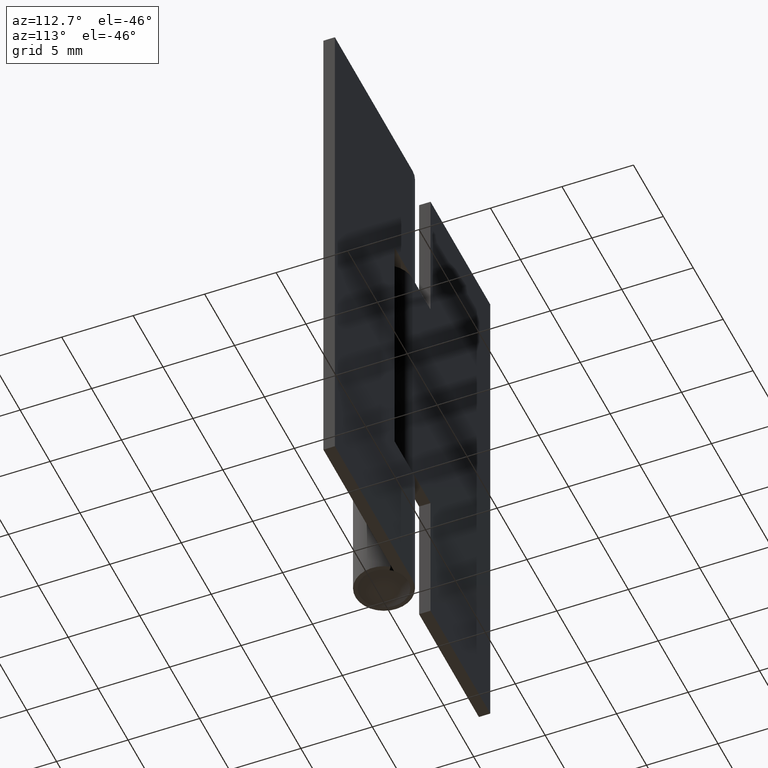
[diagram: clean part render]
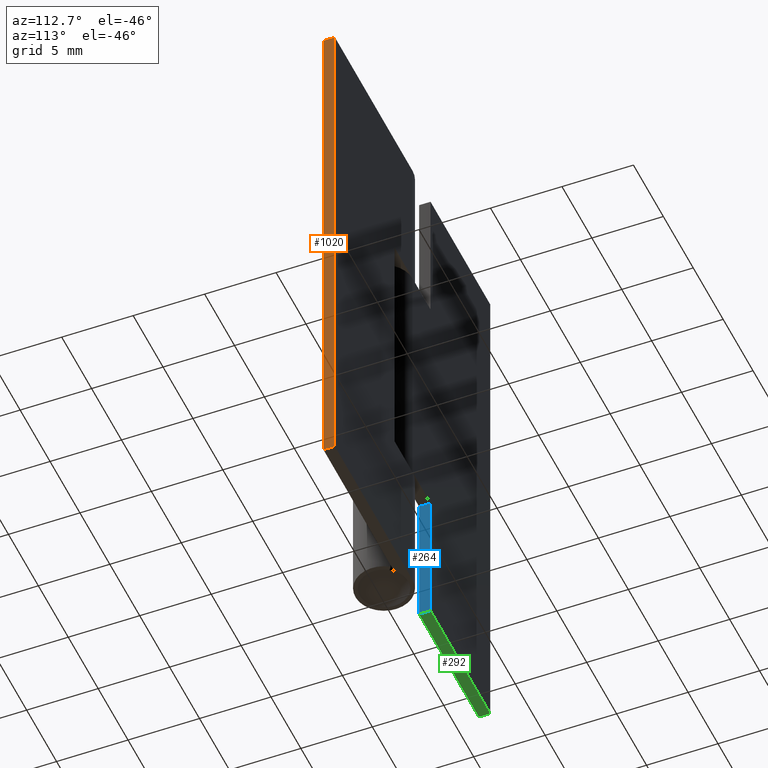
[diagram: same view with three faces highlighted in distinct colors, each labeled with its STEP entity id]
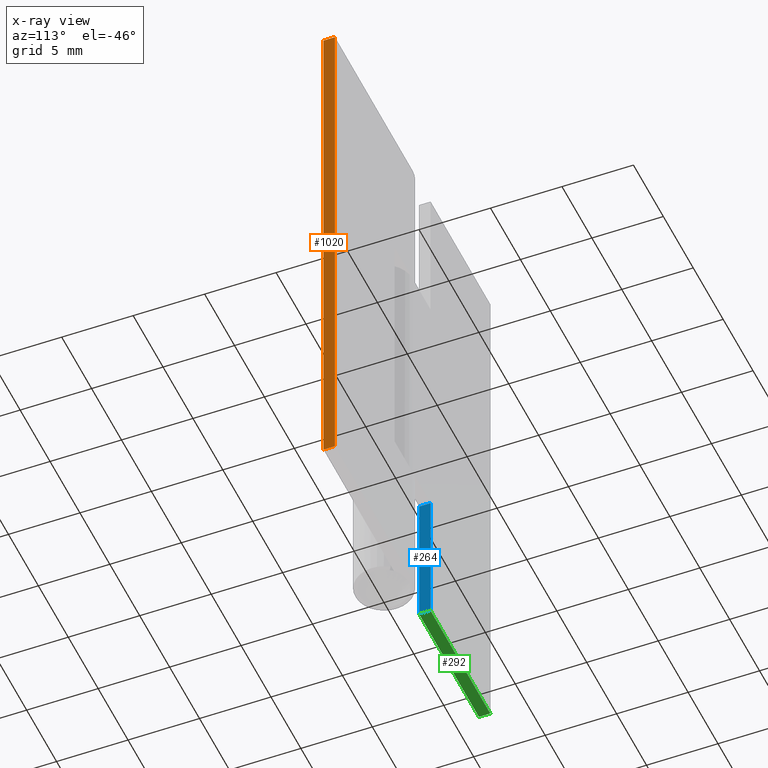
[diagram: x-ray of the same camera — body ghosted, the three highlighted faces saturated]
A machine part, auxiliary view with three faces highlighted in distinct colors.
The next image is the same camera in x-ray (body ghosted, the three faces saturated) — at least one of them is partly hidden behind the body in this view.
Their STEP definitions:

[orange] entity #1020 — the highlighted face is a freeform B-spline surface patch.
#697=CARTESIAN_POINT('',(13.0,1.999999000000000,0.0));
#698=VERTEX_POINT('',#697);
#704=CARTESIAN_POINT('',(13.0,1.200000000000000,0.0));
#705=VERTEX_POINT('',#704);
#706=CARTESIAN_POINT('',(13.0,1.999999000000000,0.0));
#707=CARTESIAN_POINT('',(13.0,1.200000000000000,0.0));
#708=QUASI_UNIFORM_CURVE('',1,(#706,#707),.UNSPECIFIED.,.F.,.U.);
#709=EDGE_CURVE('',#698,#705,#708,.T.);
#798=CARTESIAN_POINT('',(13.0,1.999999000000000,38.0));
#799=VERTEX_POINT('',#798);
#880=CARTESIAN_POINT('',(13.0,1.200000000000000,38.0));
#881=VERTEX_POINT('',#880);
#887=CARTESIAN_POINT('',(13.0,1.999999000000000,38.0));
#888=CARTESIAN_POINT('',(13.0,1.200000000000000,38.0));
#889=QUASI_UNIFORM_CURVE('',1,(#887,#888),.UNSPECIFIED.,.F.,.U.);
#890=EDGE_CURVE('',#799,#881,#889,.T.);
#991=CARTESIAN_POINT('',(13.0,1.200000000000000,38.0));
#992=CARTESIAN_POINT('',(13.0,1.200000000000000,0.0));
#993=QUASI_UNIFORM_CURVE('',1,(#991,#992),.UNSPECIFIED.,.F.,.U.);
#994=EDGE_CURVE('',#881,#705,#993,.T.);
#1005=CARTESIAN_POINT('',(13.0,1.160040051500553,39.898099926348621));
#1006=CARTESIAN_POINT('',(13.0,1.160040051500553,-1.898100945588053));
#1007=CARTESIAN_POINT('',(13.0,2.039958969957092,39.898099926348621));
#1008=CARTESIAN_POINT('',(13.0,2.039958969957092,-1.898100945588053));
#1009=B_SPLINE_SURFACE_WITH_KNOTS('',1,1,((#1005,#1007),(#1006,#1008)),.UNSPECIFIED.,.F.,.F.,.U.,(2,2),(2,2),(0.0,41.796200871936684),(0.041708334948495,0.958291687403247),.UNSPECIFIED.);
#1010=ORIENTED_EDGE('',*,*,#709,.F.);
#1011=CARTESIAN_POINT('',(13.0,1.999999000000000,38.0));
#1012=CARTESIAN_POINT('',(13.0,1.999999000000000,0.0));
#1013=QUASI_UNIFORM_CURVE('',1,(#1011,#1012),.UNSPECIFIED.,.F.,.U.);
#1014=EDGE_CURVE('',#799,#698,#1013,.T.);
#1015=ORIENTED_EDGE('',*,*,#1014,.F.);
#1016=ORIENTED_EDGE('',*,*,#890,.T.);
#1017=ORIENTED_EDGE('',*,*,#994,.T.);
#1018=EDGE_LOOP('',(#1010,#1015,#1016,#1017));
#1019=FACE_OUTER_BOUND('',#1018,.T.);
#1020=ADVANCED_FACE('',(#1019),#1009,.T.);

[blue] entity #264 — the highlighted face is a freeform B-spline surface patch.
#215=CARTESIAN_POINT('',(-3.0,1.199999999999980,9.999999999999890));
#216=VERTEX_POINT('',#215);
#222=CARTESIAN_POINT('',(-3.0,1.999999000000030,9.999999999999890));
#223=VERTEX_POINT('',#222);
#224=CARTESIAN_POINT('',(-3.0,1.199999999999980,9.999999999999890));
#225=CARTESIAN_POINT('',(-3.0,1.999999000000030,9.999999999999890));
#226=QUASI_UNIFORM_CURVE('',1,(#224,#225),.UNSPECIFIED.,.F.,.U.);
#227=EDGE_CURVE('',#216,#223,#226,.T.);
#237=CARTESIAN_POINT('',(-3.0,1.160040051500531,-0.499499980618069));
#238=CARTESIAN_POINT('',(-3.0,1.160040051500531,10.499500248838840));
#239=CARTESIAN_POINT('',(-3.0,2.039958969957125,-0.499499980618069));
#240=CARTESIAN_POINT('',(-3.0,2.039958969957125,10.499500248838840));
#241=B_SPLINE_SURFACE_WITH_KNOTS('',1,1,((#237,#239),(#238,#240)),.UNSPECIFIED.,.F.,.F.,.U.,(2,2),(2,2),(0.0,10.999000229456909),(0.041708334948495,0.958291687403247),.UNSPECIFIED.);
#242=CARTESIAN_POINT('',(-3.0,1.200000000000000,0.0));
#243=VERTEX_POINT('',#242);
#244=CARTESIAN_POINT('',(-3.0,1.199999999999980,9.999999999999890));
#245=CARTESIAN_POINT('',(-3.0,1.200000000000000,0.0));
#246=QUASI_UNIFORM_CURVE('',1,(#244,#245),.UNSPECIFIED.,.F.,.U.);
#247=EDGE_CURVE('',#216,#243,#246,.T.);
#248=ORIENTED_EDGE('',*,*,#247,.T.);
#249=CARTESIAN_POINT('',(-3.0,1.999999000000030,-1.421085E-014));
#250=VERTEX_POINT('',#249);
#251=CARTESIAN_POINT('',(-3.0,1.200000000000000,0.0));
#252=CARTESIAN_POINT('',(-3.0,1.999999000000030,-1.421085E-014));
#253=QUASI_UNIFORM_CURVE('',1,(#251,#252),.UNSPECIFIED.,.F.,.U.);
#254=EDGE_CURVE('',#243,#250,#253,.T.);
#255=ORIENTED_EDGE('',*,*,#254,.T.);
#256=CARTESIAN_POINT('',(-3.0,1.999999000000030,-1.421085E-014));
#257=CARTESIAN_POINT('',(-3.0,1.999999000000030,9.999999999999890));
#258=QUASI_UNIFORM_CURVE('',1,(#256,#257),.UNSPECIFIED.,.F.,.U.);
#259=EDGE_CURVE('',#250,#223,#258,.T.);
#260=ORIENTED_EDGE('',*,*,#259,.T.);
#261=ORIENTED_EDGE('',*,*,#227,.F.);
#262=EDGE_LOOP('',(#248,#255,#260,#261));
#263=FACE_OUTER_BOUND('',#262,.T.);
#264=ADVANCED_FACE('',(#263),#241,.F.);

[green] entity #292 — the highlighted face is a freeform B-spline surface patch.
#242=CARTESIAN_POINT('',(-3.0,1.200000000000000,0.0));
#243=VERTEX_POINT('',#242);
#249=CARTESIAN_POINT('',(-3.0,1.999999000000030,-1.421085E-014));
#250=VERTEX_POINT('',#249);
#251=CARTESIAN_POINT('',(-3.0,1.200000000000000,0.0));
#252=CARTESIAN_POINT('',(-3.0,1.999999000000030,-1.421085E-014));
#253=QUASI_UNIFORM_CURVE('',1,(#251,#252),.UNSPECIFIED.,.F.,.U.);
#254=EDGE_CURVE('',#243,#250,#253,.T.);
#265=CARTESIAN_POINT('',(-13.499499980618060,1.160040051500552,0.0));
#266=CARTESIAN_POINT('',(-2.500499751161039,1.160040051500552,0.0));
#267=CARTESIAN_POINT('',(-13.499499980618060,2.039958969957123,0.0));
#268=CARTESIAN_POINT('',(-2.500499751161039,2.039958969957123,0.0));
#269=B_SPLINE_SURFACE_WITH_KNOTS('',1,1,((#265,#267),(#266,#268)),.UNSPECIFIED.,.F.,.F.,.U.,(2,2),(2,2),(0.0,10.999000229457019),(0.041708334948495,0.958291687403247),.UNSPECIFIED.);
#270=ORIENTED_EDGE('',*,*,#254,.F.);
#271=CARTESIAN_POINT('',(-13.0,1.200000000000000,0.0));
#272=VERTEX_POINT('',#271);
#273=CARTESIAN_POINT('',(-3.0,1.200000000000000,0.0));
#274=CARTESIAN_POINT('',(-13.0,1.200000000000000,0.0));
#275=QUASI_UNIFORM_CURVE('',1,(#273,#274),.UNSPECIFIED.,.F.,.U.);
#276=EDGE_CURVE('',#243,#272,#275,.T.);
#277=ORIENTED_EDGE('',*,*,#276,.T.);
#278=CARTESIAN_POINT('',(-13.0,1.999999000000000,0.0));
#279=VERTEX_POINT('',#278);
#280=CARTESIAN_POINT('',(-13.0,1.200000000000000,0.0));
#281=CARTESIAN_POINT('',(-13.0,1.999999000000000,0.0));
#282=QUASI_UNIFORM_CURVE('',1,(#280,#281),.UNSPECIFIED.,.F.,.U.);
#283=EDGE_CURVE('',#272,#279,#282,.T.);
#284=ORIENTED_EDGE('',*,*,#283,.T.);
#285=CARTESIAN_POINT('',(-13.0,1.999999000000000,0.0));
#286=CARTESIAN_POINT('',(-3.0,1.999999000000030,-1.421085E-014));
#287=QUASI_UNIFORM_CURVE('',1,(#285,#286),.UNSPECIFIED.,.F.,.U.);
#288=EDGE_CURVE('',#279,#250,#287,.T.);
#289=ORIENTED_EDGE('',*,*,#288,.T.);
#290=EDGE_LOOP('',(#270,#277,#284,#289));
#291=FACE_OUTER_BOUND('',#290,.T.);
#292=ADVANCED_FACE('',(#291),#269,.F.);